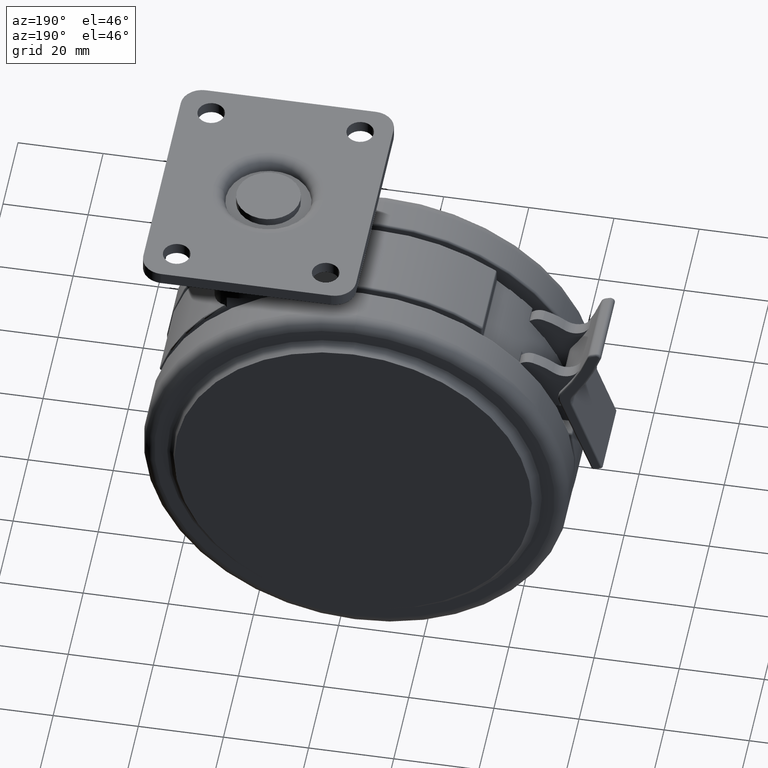
[diagram: clean part render]
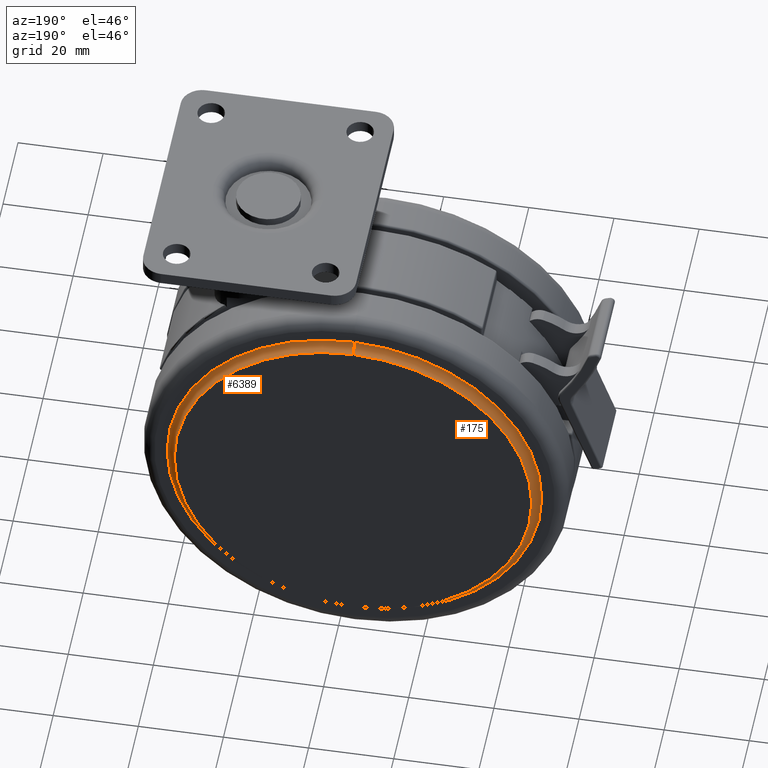
[diagram: same view with one multi-face feature highlighted, each face labeled with its STEP entity id]
A machine part, auxiliary view. The highlighted faces form ONE feature: a constant-radius fillet chain: 2 tangent blend faces with common blend radius 2.2 mm. The faces share edges in the B-rep.
Their STEP definitions:
[1] entity #175 (Torus):
#53 = CARTESIAN_POINT ( 'NONE',  ( -24.00000000000000000, 23.50000000000000000, -95.50000000000000000 ) ) ;
#83 = CIRCLE ( 'NONE', #5390, 44.00000000000104400 ) ;
#175 = ADVANCED_FACE ( 'NONE', ( #8527 ), #3218, .F. ) ;
#694 = DIRECTION ( 'NONE',  ( -4.161225942742110400E-015, -1.000000000000000000, 0.0000000000000000000 ) ) ;
#768 = EDGE_CURVE ( 'NONE', #5789, #6354, #5443, .T. ) ;
#1546 = EDGE_CURVE ( 'NONE', #8152, #5078, #83, .T. ) ;
#1623 = AXIS2_PLACEMENT_3D ( 'NONE', #6938, #2938, #7604 ) ;
#1703 = DIRECTION ( 'NONE',  ( -4.161225942742110400E-015, -1.000000000000000000, 0.0000000000000000000 ) ) ;
#2297 = DIRECTION ( 'NONE',  ( 0.0000000000000000000, 0.0000000000000000000, -1.000000000000000000 ) ) ;
#2332 = AXIS2_PLACEMENT_3D ( 'NONE', #2991, #1703, #2297 ) ;
#2781 = CIRCLE ( 'NONE', #7130, 2.200000000000000600 ) ;
#2889 = CARTESIAN_POINT ( 'NONE',  ( -24.00000000000000700, 23.69163752878140300, -9.308362471218599100 ) ) ;
#2938 = DIRECTION ( 'NONE',  ( 1.000000000000000000, -4.161225942742110400E-015, 0.0000000000000000000 ) ) ;
#2991 = CARTESIAN_POINT ( 'NONE',  ( -24.00000000000000000, 23.50000000000000000, -53.50000000000000000 ) ) ;
#3218 = TOROIDAL_SURFACE ( 'NONE', #6708, 44.19163752878139900, 2.200000000000000200 ) ;
#3559 = DIRECTION ( 'NONE',  ( -4.731064025391290900E-015, -1.000000000000000000, 0.0000000000000000000 ) ) ;
#3573 = EDGE_CURVE ( 'NONE', #5789, #8152, #2781, .T. ) ;
#3747 = CARTESIAN_POINT ( 'NONE',  ( -24.00000000000000000, 23.69163752878140300, -53.50000000000000000 ) ) ;
#3868 = EDGE_LOOP ( 'NONE', ( #4456, #7392, #7024, #4712 ) ) ;
#3899 = CARTESIAN_POINT ( 'NONE',  ( -24.00000000000000700, 21.50000000000000000, -97.50000000000116500 ) ) ;
#4134 = CARTESIAN_POINT ( 'NONE',  ( -24.00000000000000000, 21.50000000000000000, -53.50000000000000000 ) ) ;
#4456 = ORIENTED_EDGE ( 'NONE', *, *, #3573, .F. ) ;
#4657 = DIRECTION ( 'NONE',  ( 0.0000000000000000000, 0.0000000000000000000, -1.000000000000000000 ) ) ;
#4712 = ORIENTED_EDGE ( 'NONE', *, *, #1546, .F. ) ;
#5078 = VERTEX_POINT ( 'NONE', #3899 ) ;
#5187 = DIRECTION ( 'NONE',  ( 4.161225942742110400E-015, 1.000000000000000000, 0.0000000000000000000 ) ) ;
#5328 = EDGE_CURVE ( 'NONE', #6354, #5078, #6807, .T. ) ;
#5390 = AXIS2_PLACEMENT_3D ( 'NONE', #4134, #694, #7954 ) ;
#5443 = CIRCLE ( 'NONE', #2332, 42.00000000000000000 ) ;
#5789 = VERTEX_POINT ( 'NONE', #5873 ) ;
#5845 = CARTESIAN_POINT ( 'NONE',  ( -24.00000000000001400, 21.50000000000000000, -9.499999999998824100 ) ) ;
#5873 = CARTESIAN_POINT ( 'NONE',  ( -24.00000000000001100, 23.50000000000000000, -11.49999999999999600 ) ) ;
#6354 = VERTEX_POINT ( 'NONE', #53 ) ;
#6708 = AXIS2_PLACEMENT_3D ( 'NONE', #3747, #5187, #4657 ) ;
#6807 = CIRCLE ( 'NONE', #1623, 2.200000000000000600 ) ;
#6938 = CARTESIAN_POINT ( 'NONE',  ( -24.00000000000000000, 23.69163752878140300, -97.69163752878139900 ) ) ;
#7024 = ORIENTED_EDGE ( 'NONE', *, *, #5328, .T. ) ;
#7130 = AXIS2_PLACEMENT_3D ( 'NONE', #2889, #7545, #3559 ) ;
#7392 = ORIENTED_EDGE ( 'NONE', *, *, #768, .T. ) ;
#7545 = DIRECTION ( 'NONE',  ( -1.000000000000000000, 4.161225942742110400E-015, -1.224646799147353200E-016 ) ) ;
#7604 = DIRECTION ( 'NONE',  ( 4.731064025391290900E-015, 1.000000000000000000, 0.0000000000000000000 ) ) ;
#7954 = DIRECTION ( 'NONE',  ( 0.0000000000000000000, 0.0000000000000000000, -1.000000000000000000 ) ) ;
#8152 = VERTEX_POINT ( 'NONE', #5845 ) ;
#8527 = FACE_OUTER_BOUND ( 'NONE', #3868, .T. ) ;
[2] entity #6389 (Torus):
#53 = CARTESIAN_POINT ( 'NONE',  ( -24.00000000000000000, 23.50000000000000000, -95.50000000000000000 ) ) ;
#256 = CARTESIAN_POINT ( 'NONE',  ( -24.00000000000000000, 23.50000000000000000, -53.50000000000000000 ) ) ;
#416 = EDGE_CURVE ( 'NONE', #6354, #5789, #5272, .T. ) ;
#495 = ORIENTED_EDGE ( 'NONE', *, *, #5328, .F. ) ;
#825 = AXIS2_PLACEMENT_3D ( 'NONE', #6720, #4690, #5396 ) ;
#1623 = AXIS2_PLACEMENT_3D ( 'NONE', #6938, #2938, #7604 ) ;
#2028 = EDGE_LOOP ( 'NONE', ( #7042, #8446, #8507, #495 ) ) ;
#2040 = DIRECTION ( 'NONE',  ( 0.0000000000000000000, 0.0000000000000000000, -1.000000000000000000 ) ) ;
#2357 = EDGE_CURVE ( 'NONE', #5078, #8152, #3281, .T. ) ;
#2781 = CIRCLE ( 'NONE', #7130, 2.200000000000000600 ) ;
#2810 = DIRECTION ( 'NONE',  ( -4.161225942742110400E-015, -1.000000000000000000, 0.0000000000000000000 ) ) ;
#2889 = CARTESIAN_POINT ( 'NONE',  ( -24.00000000000000700, 23.69163752878140300, -9.308362471218599100 ) ) ;
#2938 = DIRECTION ( 'NONE',  ( 1.000000000000000000, -4.161225942742110400E-015, 0.0000000000000000000 ) ) ;
#3281 = CIRCLE ( 'NONE', #3865, 44.00000000000104400 ) ;
#3559 = DIRECTION ( 'NONE',  ( -4.731064025391290900E-015, -1.000000000000000000, 0.0000000000000000000 ) ) ;
#3573 = EDGE_CURVE ( 'NONE', #5789, #8152, #2781, .T. ) ;
#3764 = DIRECTION ( 'NONE',  ( -4.161225942742110400E-015, -1.000000000000000000, 0.0000000000000000000 ) ) ;
#3865 = AXIS2_PLACEMENT_3D ( 'NONE', #7745, #3764, #8427 ) ;
#3899 = CARTESIAN_POINT ( 'NONE',  ( -24.00000000000000700, 21.50000000000000000, -97.50000000000116500 ) ) ;
#4690 = DIRECTION ( 'NONE',  ( 4.161225942742110400E-015, 1.000000000000000000, 0.0000000000000000000 ) ) ;
#5078 = VERTEX_POINT ( 'NONE', #3899 ) ;
#5272 = CIRCLE ( 'NONE', #6677, 42.00000000000000000 ) ;
#5328 = EDGE_CURVE ( 'NONE', #6354, #5078, #6807, .T. ) ;
#5396 = DIRECTION ( 'NONE',  ( 0.0000000000000000000, 0.0000000000000000000, -1.000000000000000000 ) ) ;
#5789 = VERTEX_POINT ( 'NONE', #5873 ) ;
#5845 = CARTESIAN_POINT ( 'NONE',  ( -24.00000000000001400, 21.50000000000000000, -9.499999999998824100 ) ) ;
#5873 = CARTESIAN_POINT ( 'NONE',  ( -24.00000000000001100, 23.50000000000000000, -11.49999999999999600 ) ) ;
#5962 = TOROIDAL_SURFACE ( 'NONE', #825, 44.19163752878139900, 2.200000000000000200 ) ;
#6354 = VERTEX_POINT ( 'NONE', #53 ) ;
#6389 = ADVANCED_FACE ( 'NONE', ( #7728 ), #5962, .F. ) ;
#6677 = AXIS2_PLACEMENT_3D ( 'NONE', #256, #2810, #2040 ) ;
#6720 = CARTESIAN_POINT ( 'NONE',  ( -24.00000000000000000, 23.69163752878140300, -53.50000000000000000 ) ) ;
#6807 = CIRCLE ( 'NONE', #1623, 2.200000000000000600 ) ;
#6938 = CARTESIAN_POINT ( 'NONE',  ( -24.00000000000000000, 23.69163752878140300, -97.69163752878139900 ) ) ;
#7042 = ORIENTED_EDGE ( 'NONE', *, *, #416, .T. ) ;
#7130 = AXIS2_PLACEMENT_3D ( 'NONE', #2889, #7545, #3559 ) ;
#7545 = DIRECTION ( 'NONE',  ( -1.000000000000000000, 4.161225942742110400E-015, -1.224646799147353200E-016 ) ) ;
#7604 = DIRECTION ( 'NONE',  ( 4.731064025391290900E-015, 1.000000000000000000, 0.0000000000000000000 ) ) ;
#7728 = FACE_OUTER_BOUND ( 'NONE', #2028, .T. ) ;
#7745 = CARTESIAN_POINT ( 'NONE',  ( -24.00000000000000000, 21.50000000000000000, -53.50000000000000000 ) ) ;
#8152 = VERTEX_POINT ( 'NONE', #5845 ) ;
#8427 = DIRECTION ( 'NONE',  ( 0.0000000000000000000, 0.0000000000000000000, -1.000000000000000000 ) ) ;
#8446 = ORIENTED_EDGE ( 'NONE', *, *, #3573, .T. ) ;
#8507 = ORIENTED_EDGE ( 'NONE', *, *, #2357, .F. ) ;